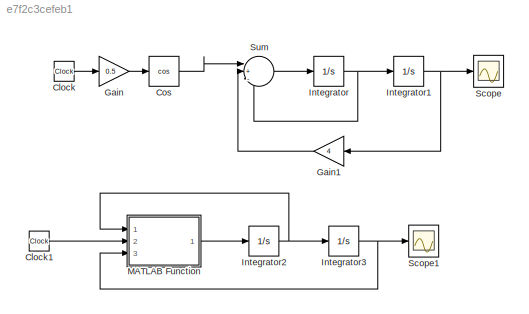
MODEL slx_e7f2c3cefeb1
KIND model
CONFIG AbsTol = auto
CONFIG EnableMultiTasking = off
CONFIG FixedStep = auto
CONFIG MaxStep = auto
CONFIG MinStep = auto
CONFIG RelTol = 1e-3
CONFIG SampleTimeConstraint = Unconstrained
CONFIG Solver = VariableStepAuto
CONFIG SolverName = VariableStepAuto
CONFIG StartTime = 0.0
CONFIG StopTime = 10.0
BLOCK [Clock] Clock
  Commented = on
BLOCK [Clock] Clock1
BLOCK [Trigonometry] Cos
  Commented = on
  Operator = cos
  Ports = [1, 1]
BLOCK [Gain] Gain
  Commented = on
  Gain = 0.5
BLOCK [Gain] Gain1
  Commented = on
  Gain = 4
BLOCK [Integrator] Integrator
  Commented = on
  InitialCondition = 1
  Ports = [1, 1]
BLOCK [Integrator] Integrator1
  Commented = on
  InitialCondition = 1
  Ports = [1, 1]
BLOCK [Integrator] Integrator2
  InitialCondition = 1
  Ports = [1, 1]
BLOCK [Integrator] Integrator3
  InitialCondition = 1
  Ports = [1, 1]
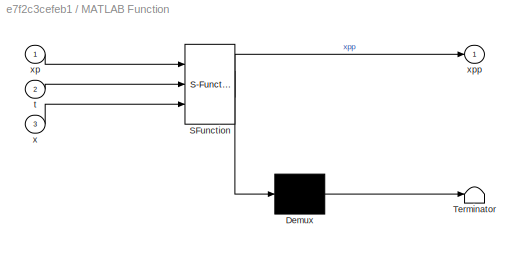
BLOCK [SubSystem] MATLAB Function
  ErrorFcn = Stateflow.Translate.translate
  PermitHierarchicalResolution = ExplicitOnly
  Ports = [3, 1]
  RequestExecContextInheritance = off
  SFBlockType = MATLAB Function
  TreatAsAtomicUnit = on
BLOCK [Demux] MATLAB Function/ Demux 
  Outputs = 1
  Ports = [1, 1]
BLOCK [S-Function] MATLAB Function/ SFunction 
  EnableBusSupport = on
  FunctionName = sf_sfun
  PortCounts = [3 2]
  Ports = [3, 2]
  SFcnIsStateOwnerBlock = off
  SFunctionDeploymentMode = off
  Tag = Stateflow S-Function 2
BLOCK [Terminator] MATLAB Function/ Terminator 
BLOCK [Inport] MATLAB Function/t
  Port = 2
BLOCK [Inport] MATLAB Function/x
  Port = 3
BLOCK [Inport] MATLAB Function/xp
BLOCK [Outport] MATLAB Function/xpp
BLOCK [Scope] Scope
  Commented = on
  Floating = off
  NumInputPorts = 1
  Ports = [1]
  ScopeSpecificationString = Simulink.scopes.TimeScopeBlockCfg('CurrentConfiguration', extmgr.ConfigurationSet(extmgr.Configuration('Core','General UI',true),extmgr.Configuration('Core','Source UI',true),extmgr.Configuration('Sources','WiredSimulink',true),extmgr.Configuration('Visuals','Time Domain',true,'SerializedDisplays',{struct('MinYLimReal','-0.46436','MaxYLimReal','1.30429','YLabelReal','','MinYLimMag','0.00000','MaxY...<+1364ch>
BLOCK [Scope] Scope1
  Floating = off
  NumInputPorts = 1
  Ports = [1]
  ScopeSpecificationString = Simulink.scopes.TimeScopeBlockCfg('CurrentConfiguration', extmgr.ConfigurationSet(extmgr.Configuration('Core','General UI',true),extmgr.Configuration('Core','Source UI',true),extmgr.Configuration('Sources','WiredSimulink',true,'DataLoggingVariableName','ScopeData1'),extmgr.Configuration('Visuals','Time Domain',true,'SerializedDisplays',{struct('MinYLimReal','-0.46436','MaxYLimReal','1.30429','YLab...<+1401ch>
BLOCK [Sum] Sum
  Commented = on
  Inputs = |+--
  Ports = [3, 1]
LINE Clock1:1 -> MATLAB Function:2
LINE Clock:1 -> Gain:1
LINE Cos:1 -> Sum:1
LINE Gain1:1 -> Sum:2
LINE Gain:1 -> Cos:1
NET Integrator1:1 -> Gain1:1, Scope:1
NET Integrator2:1 -> Integrator3:1, MATLAB Function:1
NET Integrator3:1 -> MATLAB Function:3, Scope1:1
NET Integrator:1 -> Integrator1:1, Sum:3
LINE MATLAB Function:1 -> Integrator2:1
LINE Sum:1 -> Integrator:1
note: NET lines group one-source signal fan-out (src -> all destinations, sorted); 1:1 wires keep LINE
CHART MATLAB Function states=1 transitions=1
  STATE_LABEL 'eML_blk_kernel()'
  STATE_LABEL 'SCRIPT:\nfunction xpp = fcn(xp, t, x)\nxpp = cos(0.5.*t) - xp - 4.*x;\n'
CHART  states=0 transitions=0
